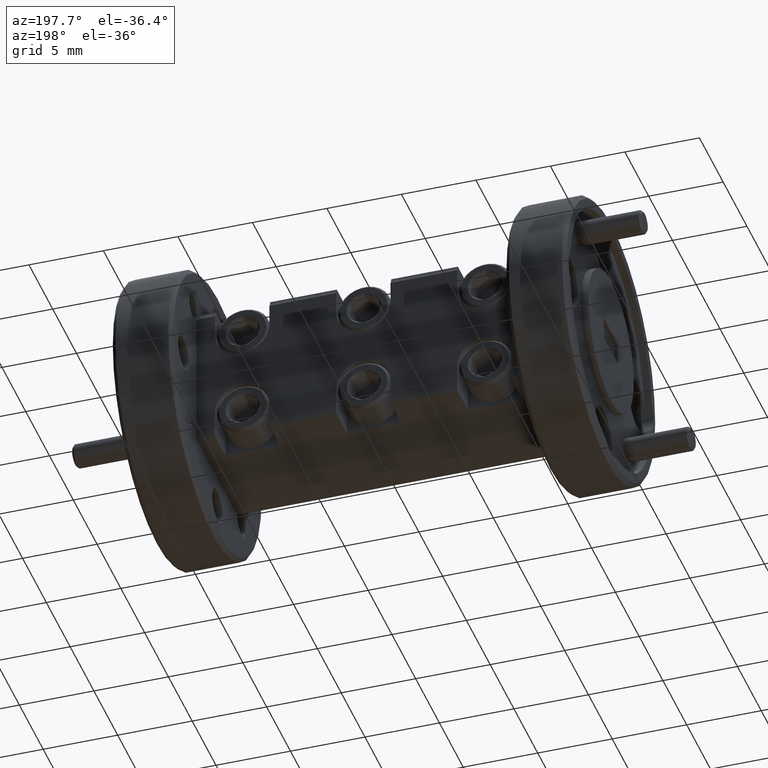
[diagram: clean part render]
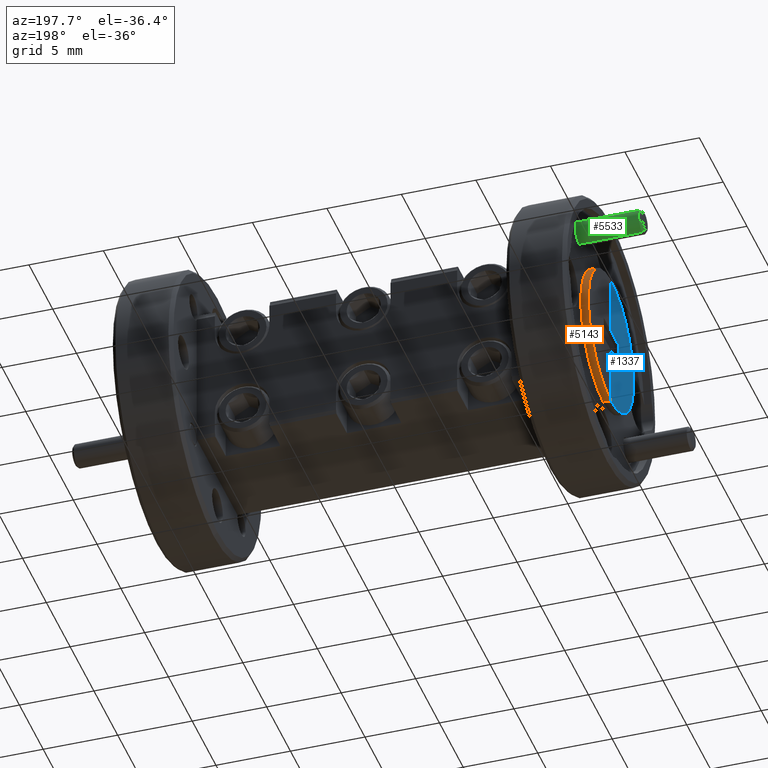
[diagram: same view with three faces highlighted in distinct colors, each labeled with its STEP entity id]
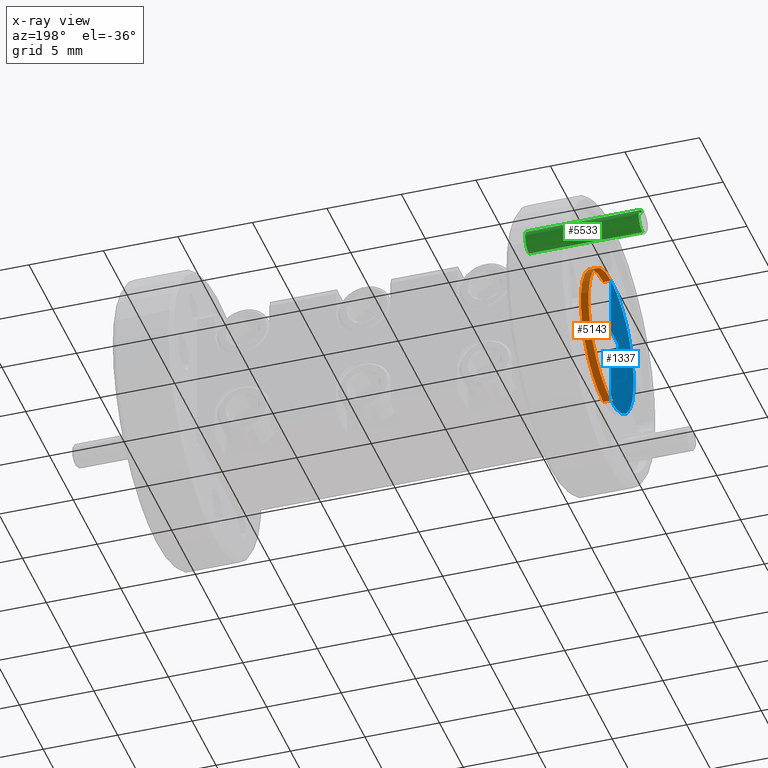
[diagram: x-ray of the same camera — body ghosted, the three highlighted faces saturated]
A machine part, auxiliary view with three faces highlighted in distinct colors.
The next image is the same camera in x-ray (body ghosted, the three faces saturated) — at least one of them is partly hidden behind the body in this view.
Their STEP definitions:

[orange] entity #5143 — the highlighted cylindrical surface (partial cylindrical patch) has radius 4.7625 mm, axis along (-1, -0, -0).
#39 = ORIENTED_EDGE ( 'NONE', *, *, #6792, .T. ) ;
#386 = CARTESIAN_POINT ( 'NONE',  ( -0.1275487174971400572, 0.6965558021064788274, 0.6844595147780062616 ) ) ;
#434 = CARTESIAN_POINT ( 'NONE',  ( -0.1475487174971400473, 0.6965558021064788274, 1.059447514586000061 ) ) ;
#500 = LINE ( 'NONE', #2314, #8780 ) ;
#516 = CYLINDRICAL_SURFACE ( 'NONE', #6221, 0.1874999999999999722 ) ;
#551 = VERTEX_POINT ( 'NONE', #10054 ) ;
#798 = CIRCLE ( 'NONE', #12296, 0.1874999999999999722 ) ;
#1856 = CARTESIAN_POINT ( 'NONE',  ( -0.1275487174971400572, 0.6965558021064788274, 1.059447514586000061 ) ) ;
#2314 = CARTESIAN_POINT ( 'NONE',  ( -0.1275487174971400572, 0.6965558021064788274, 1.059447514586000061 ) ) ;
#2374 = DIRECTION ( 'NONE',  ( 1.000000000000000000, 0.000000000000000000, 0.000000000000000000 ) ) ;
#3180 = FACE_OUTER_BOUND ( 'NONE', #3849, .T. ) ;
#3201 = EDGE_CURVE ( 'NONE', #10096, #551, #8398, .T. ) ;
#3849 = EDGE_LOOP ( 'NONE', ( #11629, #10143, #39, #8770 ) ) ;
#4072 = AXIS2_PLACEMENT_3D ( 'NONE', #8197, #4362, #7119 ) ;
#4202 = DIRECTION ( 'NONE',  ( -1.000000000000000000, 0.000000000000000000, 0.000000000000000000 ) ) ;
#4312 = CARTESIAN_POINT ( 'NONE',  ( -0.1475487174971400473, 0.6950558021064788816, 0.8719535146820031057 ) ) ;
#4362 = DIRECTION ( 'NONE',  ( -1.000000000000000000, 0.000000000000000000, 0.000000000000000000 ) ) ;
#4581 = CARTESIAN_POINT ( 'NONE',  ( -0.1475487174971400473, 0.6965558021064788274, 0.6844595147780061506 ) ) ;
#5143 = ADVANCED_FACE ( 'NONE', ( #3180 ), #516, .T. ) ;
#5221 = DIRECTION ( 'NONE',  ( -1.000000000000000000, -0.000000000000000000, -0.000000000000000000 ) ) ;
#5501 = VERTEX_POINT ( 'NONE', #434 ) ;
#6221 = AXIS2_PLACEMENT_3D ( 'NONE', #6974, #5221, #10907 ) ;
#6223 = DIRECTION ( 'NONE',  ( -1.000000000000000000, -0.000000000000000000, -0.000000000000000000 ) ) ;
#6792 = EDGE_CURVE ( 'NONE', #5501, #10096, #500, .T. ) ;
#6974 = CARTESIAN_POINT ( 'NONE',  ( -0.1275487174971400572, 0.6950558021064788816, 0.8719535146820031057 ) ) ;
#7119 = DIRECTION ( 'NONE',  ( 0.000000000000000000, 0.000000000000000000, 1.000000000000000000 ) ) ;
#7178 = DIRECTION ( 'NONE',  ( 0.000000000000000000, 0.000000000000000000, 1.000000000000000000 ) ) ;
#7951 = VERTEX_POINT ( 'NONE', #4581 ) ;
#8069 = EDGE_CURVE ( 'NONE', #5501, #7951, #798, .T. ) ;
#8197 = CARTESIAN_POINT ( 'NONE',  ( -0.1275487174971400572, 0.6950558021064788816, 0.8719535146820031057 ) ) ;
#8398 = CIRCLE ( 'NONE', #4072, 0.1874999999999999722 ) ;
#8502 = EDGE_CURVE ( 'NONE', #551, #7951, #9929, .T. ) ;
#8770 = ORIENTED_EDGE ( 'NONE', *, *, #3201, .T. ) ;
#8780 = VECTOR ( 'NONE', #2374, 39.37007874015748143 ) ;
#9929 = LINE ( 'NONE', #386, #10530 ) ;
#10054 = CARTESIAN_POINT ( 'NONE',  ( -0.1275487174971400572, 0.6965558021064788274, 0.6844595147780061506 ) ) ;
#10096 = VERTEX_POINT ( 'NONE', #1856 ) ;
#10143 = ORIENTED_EDGE ( 'NONE', *, *, #8069, .F. ) ;
#10530 = VECTOR ( 'NONE', #6223, 39.37007874015748143 ) ;
#10907 = DIRECTION ( 'NONE',  ( 0.000000000000000000, 0.000000000000000000, 1.000000000000000000 ) ) ;
#11629 = ORIENTED_EDGE ( 'NONE', *, *, #8502, .T. ) ;
#12296 = AXIS2_PLACEMENT_3D ( 'NONE', #4312, #4202, #7178 ) ;

[blue] entity #1337 — the highlighted planar face has unit normal (1, -0, -0).
#442 = EDGE_CURVE ( 'NONE', #4724, #1242, #6821, .T. ) ;
#513 = DIRECTION ( 'NONE',  ( 2.757206031840762144E-17, 1.000000000000000000, 4.817955376316477079E-17 ) ) ;
#701 = VERTEX_POINT ( 'NONE', #2873 ) ;
#1242 = VERTEX_POINT ( 'NONE', #10053 ) ;
#1337 = ADVANCED_FACE ( 'NONE', ( #12043 ), #2445, .F. ) ;
#1394 = AXIS2_PLACEMENT_3D ( 'NONE', #11951, #8233, #2599 ) ;
#1568 = LINE ( 'NONE', #5368, #12147 ) ;
#1671 = VERTEX_POINT ( 'NONE', #2302 ) ;
#2012 = DIRECTION ( 'NONE',  ( -5.551115123125781470E-17, 4.817955376316473998E-17, -1.000000000000000000 ) ) ;
#2083 = EDGE_LOOP ( 'NONE', ( #8148, #3572, #2884, #3752, #8604, #11778, #5725, #3705 ) ) ;
#2136 = CARTESIAN_POINT ( 'NONE',  ( -0.1475487174971401860, 0.6965558021064788274, 0.4919535146820029348 ) ) ;
#2204 = DIRECTION ( 'NONE',  ( 0.000000000000000000, 0.000000000000000000, 1.000000000000000000 ) ) ;
#2302 = CARTESIAN_POINT ( 'NONE',  ( -0.1475487174971400473, 0.6965558021064788274, 0.8414535146820031342 ) ) ;
#2445 = PLANE ( 'NONE',  #10390 ) ;
#2510 = CARTESIAN_POINT ( 'NONE',  ( -0.1475487174971401860, 0.3165558021064788785, 0.4919535146820029348 ) ) ;
#2599 = DIRECTION ( 'NONE',  ( 0.000000000000000000, 0.000000000000000000, 1.000000000000000000 ) ) ;
#2637 = CARTESIAN_POINT ( 'NONE',  ( -0.1475487174971403248, 0.6950558021064788816, 0.8719535146820031057 ) ) ;
#2873 = CARTESIAN_POINT ( 'NONE',  ( -0.1475487174971403248, 0.6950558021064788816, 0.6844535146820031057 ) ) ;
#2884 = ORIENTED_EDGE ( 'NONE', *, *, #442, .T. ) ;
#3572 = ORIENTED_EDGE ( 'NONE', *, *, #11806, .T. ) ;
#3702 = EDGE_CURVE ( 'NONE', #1671, #7429, #7524, .T. ) ;
#3705 = ORIENTED_EDGE ( 'NONE', *, *, #3702, .T. ) ;
#3752 = ORIENTED_EDGE ( 'NONE', *, *, #6074, .T. ) ;
#3775 = CIRCLE ( 'NONE', #1394, 0.1875000000000001110 ) ;
#4073 = CARTESIAN_POINT ( 'NONE',  ( -0.1475487174971403248, 0.6950558021064788816, 0.8719535146820031057 ) ) ;
#4427 = DIRECTION ( 'NONE',  ( 2.757206031840762144E-17, 1.000000000000000000, 4.817955376316477079E-17 ) ) ;
#4430 = LINE ( 'NONE', #6412, #6369 ) ;
#4679 = VERTEX_POINT ( 'NONE', #5122 ) ;
#4724 = VERTEX_POINT ( 'NONE', #5065 ) ;
#4929 = EDGE_CURVE ( 'NONE', #5154, #6185, #1568, .T. ) ;
#5065 = CARTESIAN_POINT ( 'NONE',  ( -0.1475487174971403248, 0.6950558021064788816, 1.059453514682003217 ) ) ;
#5104 = LINE ( 'NONE', #5218, #5602 ) ;
#5122 = CARTESIAN_POINT ( 'NONE',  ( -0.1475487174971400473, 0.6340558021064789385, 0.8414535146820031342 ) ) ;
#5154 = VERTEX_POINT ( 'NONE', #9808 ) ;
#5218 = CARTESIAN_POINT ( 'NONE',  ( -0.1475487174971400473, 0.6340558021064789385, 0.8414535146820031342 ) ) ;
#5368 = CARTESIAN_POINT ( 'NONE',  ( -0.1475487174971400473, 0.6340558021064789385, 0.9024535146820030773 ) ) ;
#5602 = VECTOR ( 'NONE', #513, 39.37007874015748143 ) ;
#5725 = ORIENTED_EDGE ( 'NONE', *, *, #8465, .T. ) ;
#6074 = EDGE_CURVE ( 'NONE', #1242, #6185, #4430, .T. ) ;
#6185 = VERTEX_POINT ( 'NONE', #10120 ) ;
#6231 = DIRECTION ( 'NONE',  ( 1.000000000000000000, -2.757206031840761220E-17, -5.551115123125781470E-17 ) ) ;
#6369 = VECTOR ( 'NONE', #9140, 39.37007874015748143 ) ;
#6412 = CARTESIAN_POINT ( 'NONE',  ( -0.1475487174971401860, 0.6965558021064788274, 0.4919535146820029348 ) ) ;
#6821 = CIRCLE ( 'NONE', #11956, 0.1875000000000001110 ) ;
#7094 = DIRECTION ( 'NONE',  ( 5.551115123125781470E-17, -4.817955376316473998E-17, 1.000000000000000000 ) ) ;
#7429 = VERTEX_POINT ( 'NONE', #11064 ) ;
#7524 = LINE ( 'NONE', #2136, #8811 ) ;
#7912 = DIRECTION ( 'NONE',  ( -1.000000000000000000, 2.674502495201554687E-33, 0.000000000000000000 ) ) ;
#8148 = ORIENTED_EDGE ( 'NONE', *, *, #11942, .T. ) ;
#8233 = DIRECTION ( 'NONE',  ( -1.000000000000000000, 2.674502495201554687E-33, 0.000000000000000000 ) ) ;
#8337 = DIRECTION ( 'NONE',  ( -1.000000000000000000, 2.674502495201554687E-33, 0.000000000000000000 ) ) ;
#8465 = EDGE_CURVE ( 'NONE', #4679, #1671, #5104, .T. ) ;
#8604 = ORIENTED_EDGE ( 'NONE', *, *, #4929, .F. ) ;
#8637 = VECTOR ( 'NONE', #7094, 39.37007874015748143 ) ;
#8811 = VECTOR ( 'NONE', #2012, 39.37007874015748143 ) ;
#8911 = EDGE_CURVE ( 'NONE', #4679, #5154, #11711, .T. ) ;
#9140 = DIRECTION ( 'NONE',  ( -5.551115123125781470E-17, 4.817955376316473998E-17, -1.000000000000000000 ) ) ;
#9808 = CARTESIAN_POINT ( 'NONE',  ( -0.1475487174971400473, 0.6340558021064789385, 0.9024535146820030773 ) ) ;
#9949 = DIRECTION ( 'NONE',  ( 0.000000000000000000, 0.000000000000000000, 1.000000000000000000 ) ) ;
#9963 = CARTESIAN_POINT ( 'NONE',  ( -0.1475487174971400473, 0.6340558021064789385, 0.9024535146820030773 ) ) ;
#10053 = CARTESIAN_POINT ( 'NONE',  ( -0.1475487174971403248, 0.6965558021064788274, 1.059447514586000061 ) ) ;
#10120 = CARTESIAN_POINT ( 'NONE',  ( -0.1475487174971401860, 0.6965558021064788274, 0.9024535146820030773 ) ) ;
#10390 = AXIS2_PLACEMENT_3D ( 'NONE', #2510, #6231, #11095 ) ;
#10495 = AXIS2_PLACEMENT_3D ( 'NONE', #2637, #8337, #9949 ) ;
#11064 = CARTESIAN_POINT ( 'NONE',  ( -0.1475487174971401860, 0.6965558021064788274, 0.6844595147780061506 ) ) ;
#11095 = DIRECTION ( 'NONE',  ( 5.551115123125781470E-17, -4.817955376316474614E-17, 1.000000000000000000 ) ) ;
#11711 = LINE ( 'NONE', #9963, #8637 ) ;
#11778 = ORIENTED_EDGE ( 'NONE', *, *, #8911, .F. ) ;
#11806 = EDGE_CURVE ( 'NONE', #701, #4724, #3775, .T. ) ;
#11897 = CIRCLE ( 'NONE', #10495, 0.1875000000000001110 ) ;
#11942 = EDGE_CURVE ( 'NONE', #7429, #701, #11897, .T. ) ;
#11951 = CARTESIAN_POINT ( 'NONE',  ( -0.1475487174971403248, 0.6950558021064788816, 0.8719535146820031057 ) ) ;
#11956 = AXIS2_PLACEMENT_3D ( 'NONE', #4073, #7912, #2204 ) ;
#12043 = FACE_OUTER_BOUND ( 'NONE', #2083, .T. ) ;
#12147 = VECTOR ( 'NONE', #4427, 39.37007874015748143 ) ;

[green] entity #5533 — the highlighted cylindrical surface (edge-blend (fillet) strip) has radius 0.7937 mm, axis along (1, 0, 0).
#250 = FACE_OUTER_BOUND ( 'NONE', #5776, .T. ) ;
#512 = CARTESIAN_POINT ( 'NONE',  ( 0.006201282502859952264, 0.8939295843151955356, 1.070827296890719094 ) ) ;
#791 = CARTESIAN_POINT ( 'NONE',  ( -0.3000487174971400717, 0.8939295843151955356, 1.102077296890718872 ) ) ;
#1189 = VERTEX_POINT ( 'NONE', #10794 ) ;
#2001 = ORIENTED_EDGE ( 'NONE', *, *, #4066, .T. ) ;
#2496 = EDGE_CURVE ( 'NONE', #4104, #1189, #2518, .T. ) ;
#2518 = CIRCLE ( 'NONE', #8652, 0.03124999999999997571 ) ;
#2531 = CARTESIAN_POINT ( 'NONE',  ( 0.006201282502859952264, 0.8939295843151955356, 1.102077296890718872 ) ) ;
#2974 = VERTEX_POINT ( 'NONE', #12121 ) ;
#3062 = CARTESIAN_POINT ( 'NONE',  ( -0.2937987174971400384, 0.8939295843151955356, 1.102077296890718872 ) ) ;
#3117 = DIRECTION ( 'NONE',  ( -1.000000000000000000, 0.000000000000000000, 0.000000000000000000 ) ) ;
#3924 = ORIENTED_EDGE ( 'NONE', *, *, #2496, .T. ) ;
#4032 = EDGE_CURVE ( 'NONE', #12125, #4104, #10261, .T. ) ;
#4066 = EDGE_CURVE ( 'NONE', #2974, #12125, #7246, .T. ) ;
#4104 = VERTEX_POINT ( 'NONE', #2531 ) ;
#4304 = LINE ( 'NONE', #8087, #10975 ) ;
#4577 = DIRECTION ( 'NONE',  ( 1.000000000000000000, -0.000000000000000000, -0.000000000000000000 ) ) ;
#5533 = ADVANCED_FACE ( 'NONE', ( #250 ), #11594, .T. ) ;
#5658 = VECTOR ( 'NONE', #9395, 39.37007874015748143 ) ;
#5721 = CARTESIAN_POINT ( 'NONE',  ( -0.2937987174971400384, 0.8939295843151955356, 1.070827296890719094 ) ) ;
#5776 = EDGE_LOOP ( 'NONE', ( #2001, #11792, #3924, #9096 ) ) ;
#5990 = DIRECTION ( 'NONE',  ( 0.000000000000000000, 0.000000000000000000, -1.000000000000000000 ) ) ;
#6903 = DIRECTION ( 'NONE',  ( 0.000000000000000000, 0.000000000000000000, -1.000000000000000000 ) ) ;
#7054 = AXIS2_PLACEMENT_3D ( 'NONE', #5721, #4577, #9469 ) ;
#7097 = CARTESIAN_POINT ( 'NONE',  ( -0.3000487174971400717, 0.8939295843151955356, 1.070827296890719094 ) ) ;
#7246 = CIRCLE ( 'NONE', #7054, 0.03124999999999997571 ) ;
#8087 = CARTESIAN_POINT ( 'NONE',  ( -0.3000487174971400717, 0.8939295843151955356, 1.039577296890719094 ) ) ;
#8652 = AXIS2_PLACEMENT_3D ( 'NONE', #512, #3117, #5990 ) ;
#9096 = ORIENTED_EDGE ( 'NONE', *, *, #9807, .F. ) ;
#9395 = DIRECTION ( 'NONE',  ( 1.000000000000000000, 0.000000000000000000, 0.000000000000000000 ) ) ;
#9469 = DIRECTION ( 'NONE',  ( 0.000000000000000000, 0.000000000000000000, -1.000000000000000000 ) ) ;
#9807 = EDGE_CURVE ( 'NONE', #2974, #1189, #4304, .T. ) ;
#10261 = LINE ( 'NONE', #791, #5658 ) ;
#10794 = CARTESIAN_POINT ( 'NONE',  ( 0.006201282502859952264, 0.8939295843151955356, 1.039577296890719094 ) ) ;
#10838 = DIRECTION ( 'NONE',  ( 1.000000000000000000, 0.000000000000000000, 0.000000000000000000 ) ) ;
#10975 = VECTOR ( 'NONE', #11860, 39.37007874015748143 ) ;
#11594 = CYLINDRICAL_SURFACE ( 'NONE', #11883, 0.03124999999999997571 ) ;
#11792 = ORIENTED_EDGE ( 'NONE', *, *, #4032, .T. ) ;
#11860 = DIRECTION ( 'NONE',  ( 1.000000000000000000, 0.000000000000000000, 0.000000000000000000 ) ) ;
#11883 = AXIS2_PLACEMENT_3D ( 'NONE', #7097, #10838, #6903 ) ;
#12121 = CARTESIAN_POINT ( 'NONE',  ( -0.2937987174971400384, 0.8939295843151955356, 1.039577296890719094 ) ) ;
#12125 = VERTEX_POINT ( 'NONE', #3062 ) ;